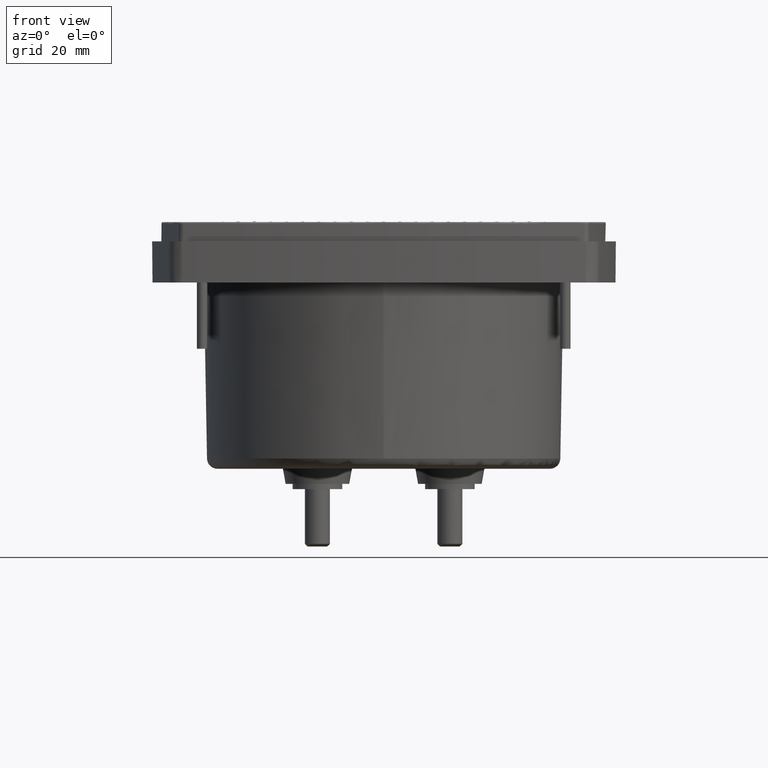
[diagram: clean part render]
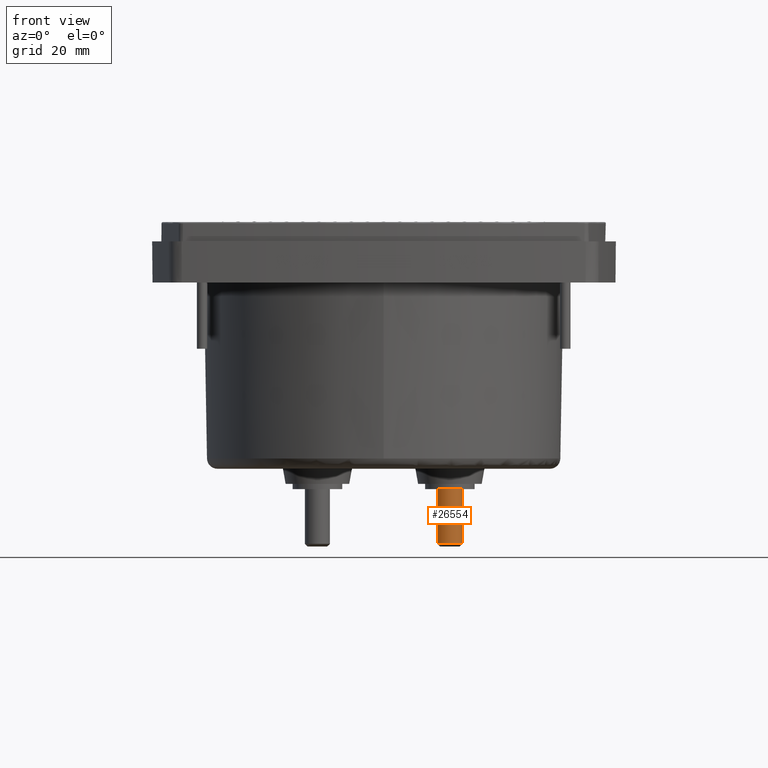
[diagram: same view with one face highlighted and labeled with its STEP entity id]
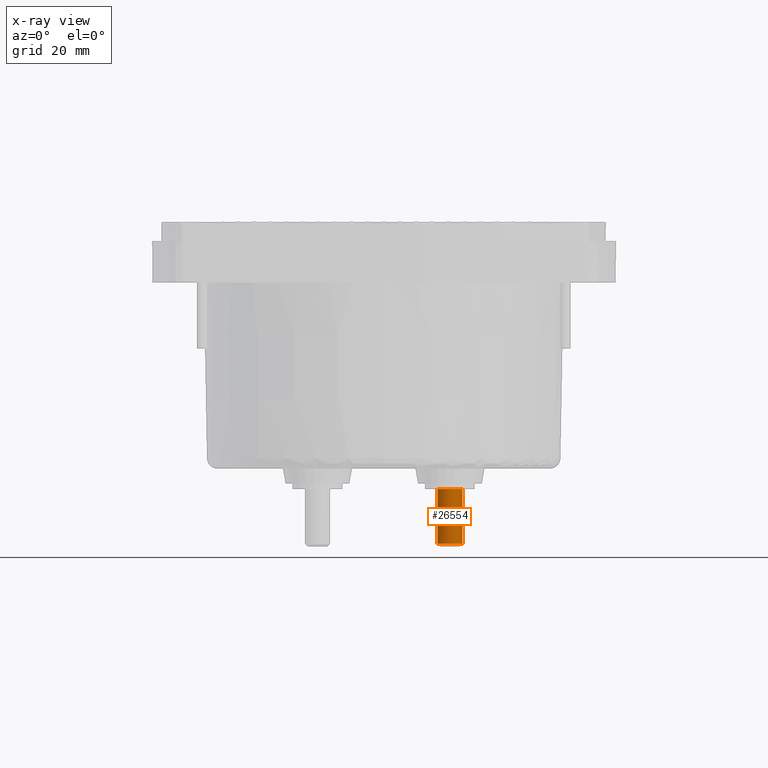
[diagram: x-ray of the same camera — body ghosted, the highlighted face saturated]
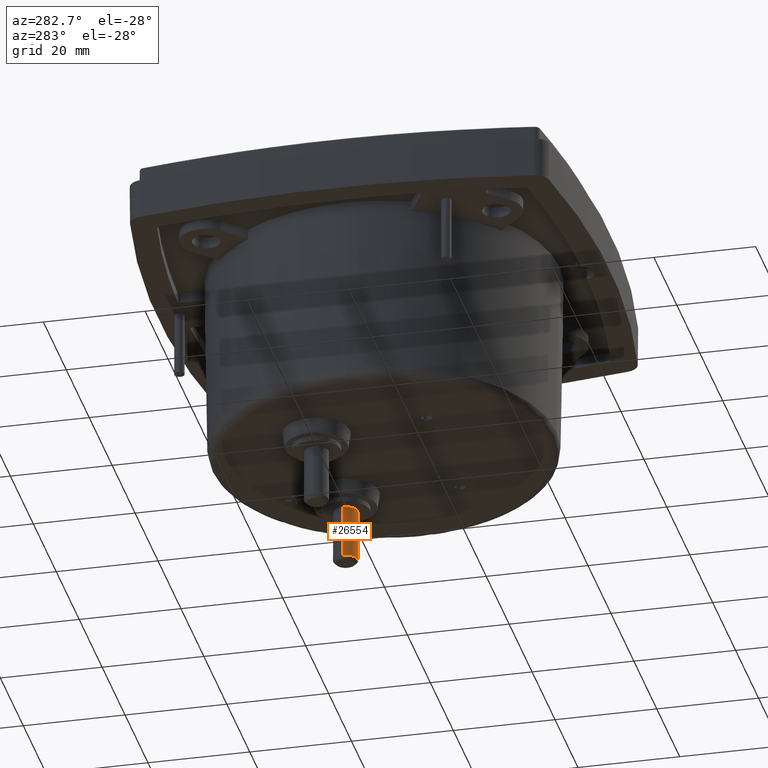
[diagram: same view with one face highlighted and labeled with its STEP entity id]
A machine part, front view. The second image highlights one B-rep face of the part: STEP entity #26554.
The next image is the same camera in x-ray: the body ghosted, the highlighted face saturated — about 0% of this face is hidden behind the body in this view.
A second angle (auxiliary view) of the same face is appended — the face is thin or edge-on in the first view.
In plain terms, the highlighted cylindrical surface (edge-blend (fillet) strip) has radius 2.4 mm, axis along (0, 0, -1).
Its self-contained STEP definition (entity closure, byte-faithful):
#251 = AXIS2_PLACEMENT_3D ( 'NONE', #29270, #8578, #17787 ) ;
#474 = VERTEX_POINT ( 'NONE', #10249 ) ;
#1232 = VECTOR ( 'NONE', #17972, 39.37007874015748143 ) ;
#1658 = CIRCLE ( 'NONE', #8909, 0.09448818897637792369 ) ;
#2138 = ORIENTED_EDGE ( 'NONE', *, *, #15511, .T. ) ;
#2809 = DIRECTION ( 'NONE',  ( -1.000000000000000000, 0.000000000000000000, 0.000000000000000000 ) ) ;
#3264 = CARTESIAN_POINT ( 'NONE',  ( 0.5944443856037795459, 1.023712034509370206, -2.181102362204724532 ) ) ;
#5420 = DIRECTION ( 'NONE',  ( -0.000000000000000000, -0.000000000000000000, 1.000000000000000000 ) ) ;
#6008 = CARTESIAN_POINT ( 'NONE',  ( 0.4999561966274015945, 1.023712034509370206, -1.767716535433071057 ) ) ;
#6378 = ORIENTED_EDGE ( 'NONE', *, *, #21298, .F. ) ;
#6630 = ORIENTED_EDGE ( 'NONE', *, *, #22116, .T. ) ;
#6948 = VERTEX_POINT ( 'NONE', #3264 ) ;
#8049 = DIRECTION ( 'NONE',  ( -0.000000000000000000, -0.000000000000000000, 1.000000000000000000 ) ) ;
#8189 = DIRECTION ( 'NONE',  ( -1.000000000000000000, 0.000000000000000000, 0.000000000000000000 ) ) ;
#8248 = LINE ( 'NONE', #10530, #16577 ) ;
#8467 = LINE ( 'NONE', #17823, #1232 ) ;
#8578 = DIRECTION ( 'NONE',  ( 0.000000000000000000, 0.000000000000000000, -1.000000000000000000 ) ) ;
#8909 = AXIS2_PLACEMENT_3D ( 'NONE', #6008, #5420, #19460 ) ;
#10249 = CARTESIAN_POINT ( 'NONE',  ( 0.4999561966274015945, 0.9292238455665519092, -2.181102362204724532 ) ) ;
#10420 = AXIS2_PLACEMENT_3D ( 'NONE', #19676, #8049, #8189 ) ;
#10530 = CARTESIAN_POINT ( 'NONE',  ( 0.4054680076510236986, 1.023712034509370206, -1.767716535433071057 ) ) ;
#10677 = AXIS2_PLACEMENT_3D ( 'NONE', #18957, #16692, #2809 ) ;
#10680 = CARTESIAN_POINT ( 'NONE',  ( 0.4054680076510236986, 1.023712034509370206, -2.181102362204724532 ) ) ;
#10689 = FACE_OUTER_BOUND ( 'NONE', #13115, .T. ) ;
#13115 = EDGE_LOOP ( 'NONE', ( #6378, #24628, #6630, #2138, #16813 ) ) ;
#13206 = VERTEX_POINT ( 'NONE', #18609 ) ;
#13799 = VERTEX_POINT ( 'NONE', #10680 ) ;
#15454 = VERTEX_POINT ( 'NONE', #23779 ) ;
#15511 = EDGE_CURVE ( 'NONE', #13799, #474, #16466, .T. ) ;
#16466 = CIRCLE ( 'NONE', #10677, 0.09448818897637792369 ) ;
#16577 = VECTOR ( 'NONE', #22010, 39.37007874015748143 ) ;
#16692 = DIRECTION ( 'NONE',  ( -0.000000000000000000, -0.000000000000000000, 1.000000000000000000 ) ) ;
#16813 = ORIENTED_EDGE ( 'NONE', *, *, #25255, .T. ) ;
#17787 = DIRECTION ( 'NONE',  ( -1.000000000000000000, 0.000000000000000000, 0.000000000000000000 ) ) ;
#17823 = CARTESIAN_POINT ( 'NONE',  ( 0.5944443856037795459, 1.023712034509370206, -1.767716535433071057 ) ) ;
#17972 = DIRECTION ( 'NONE',  ( 0.000000000000000000, 0.000000000000000000, -1.000000000000000000 ) ) ;
#18609 = CARTESIAN_POINT ( 'NONE',  ( 0.4054680076510236986, 1.023712034509370206, -1.767716535433071057 ) ) ;
#18957 = CARTESIAN_POINT ( 'NONE',  ( 0.4999561966274015945, 1.023712034509370206, -2.181102362204724532 ) ) ;
#19460 = DIRECTION ( 'NONE',  ( -1.000000000000000000, 0.000000000000000000, 0.000000000000000000 ) ) ;
#19676 = CARTESIAN_POINT ( 'NONE',  ( 0.4999561966274015945, 1.023712034509370206, -2.181102362204724532 ) ) ;
#20055 = CYLINDRICAL_SURFACE ( 'NONE', #251, 0.09448818897637792369 ) ;
#21298 = EDGE_CURVE ( 'NONE', #15454, #6948, #8467, .T. ) ;
#22010 = DIRECTION ( 'NONE',  ( 0.000000000000000000, 0.000000000000000000, -1.000000000000000000 ) ) ;
#22116 = EDGE_CURVE ( 'NONE', #13206, #13799, #8248, .T. ) ;
#23447 = CIRCLE ( 'NONE', #10420, 0.09448818897637792369 ) ;
#23779 = CARTESIAN_POINT ( 'NONE',  ( 0.5944443856037795459, 1.023712034509370206, -1.767716535433071057 ) ) ;
#24628 = ORIENTED_EDGE ( 'NONE', *, *, #27609, .F. ) ;
#25255 = EDGE_CURVE ( 'NONE', #474, #6948, #23447, .T. ) ;
#26554 = ADVANCED_FACE ( 'NONE', ( #10689 ), #20055, .T. ) ;
#27609 = EDGE_CURVE ( 'NONE', #13206, #15454, #1658, .T. ) ;
#29270 = CARTESIAN_POINT ( 'NONE',  ( 0.4999561966274015945, 1.023712034509370206, -1.767716535433071057 ) ) ;